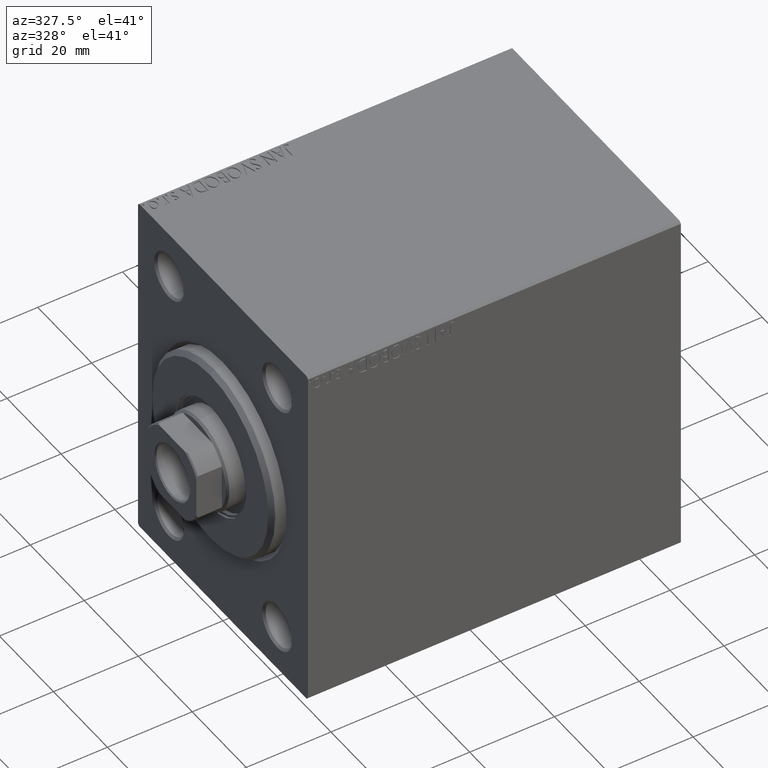
[diagram: clean part render]
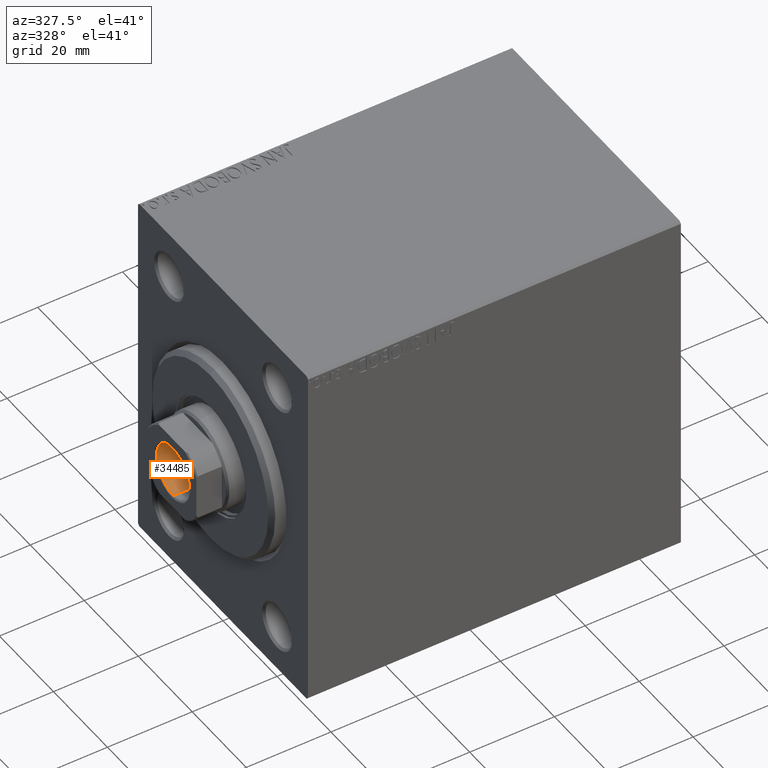
[diagram: same view with one face highlighted and labeled with its STEP entity id]
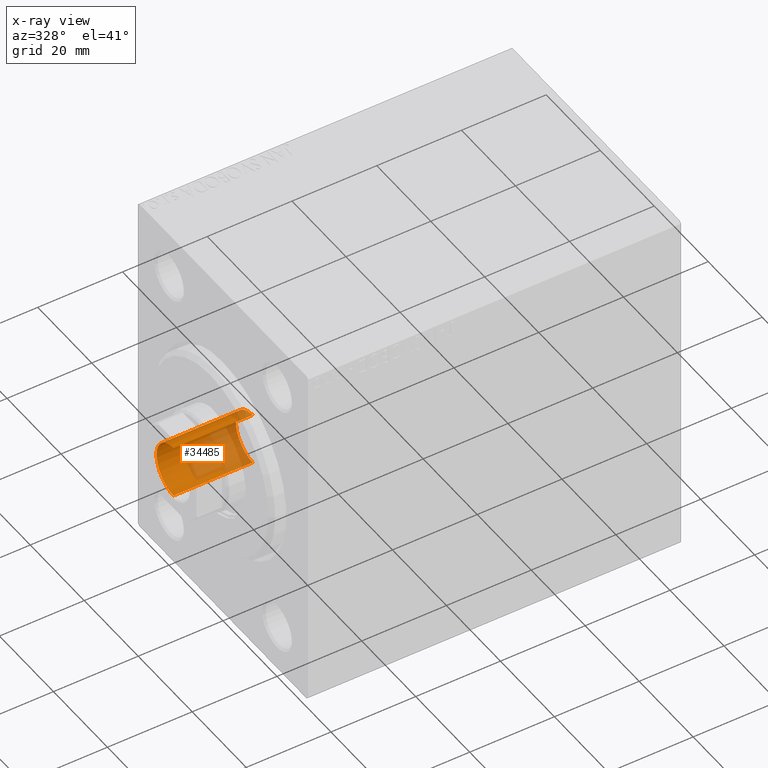
[diagram: x-ray of the same camera — body ghosted, the highlighted face saturated]
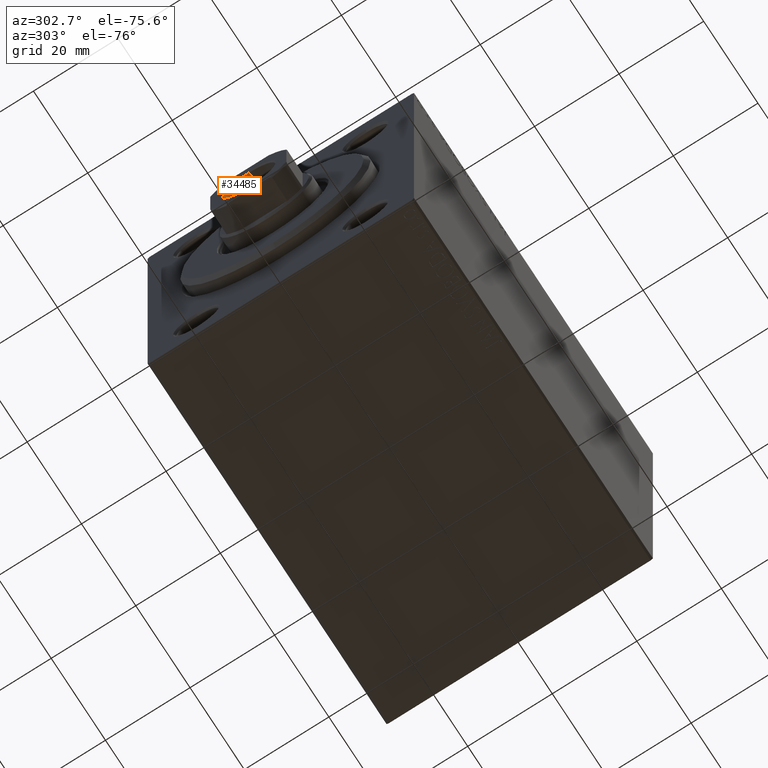
[diagram: same view with one face highlighted and labeled with its STEP entity id]
A machine part, auxiliary view. The second image highlights one B-rep face of the part: STEP entity #34485.
The next image is the same camera in x-ray: the body ghosted, the highlighted face saturated — about 49% of this face is hidden behind the body in this view.
A second angle (auxiliary view) of the same face is appended — the face is thin or edge-on in the first view.
In plain terms, the highlighted cylindrical surface (edge-blend (fillet) strip) has radius 6.25 mm, axis along (-1, 0, 0).
Its self-contained STEP definition (entity closure, byte-faithful):
#903 = CARTESIAN_POINT ( 'NONE',  ( -6.249999999999996447, 7.654042494670952676E-16, 88.00000000000000000 ) ) ;
#1090 = VERTEX_POINT ( 'NONE', #12709 ) ;
#2647 = CYLINDRICAL_SURFACE ( 'NONE', #14250, 6.249999999999996447 ) ;
#3184 = DIRECTION ( 'NONE',  ( 0.000000000000000000, 0.000000000000000000, 1.000000000000000000 ) ) ;
#4269 = DIRECTION ( 'NONE',  ( -0.000000000000000000, -0.000000000000000000, 1.000000000000000000 ) ) ;
#5599 = VERTEX_POINT ( 'NONE', #29785 ) ;
#6141 = ORIENTED_EDGE ( 'NONE', *, *, #33280, .T. ) ;
#6310 = DIRECTION ( 'NONE',  ( 1.000000000000000000, 0.000000000000000000, 0.000000000000000000 ) ) ;
#7190 = CARTESIAN_POINT ( 'NONE',  ( 0.000000000000000000, 0.000000000000000000, 87.69999999999998863 ) ) ;
#7401 = LINE ( 'NONE', #31058, #39976 ) ;
#8098 = DIRECTION ( 'NONE',  ( 1.000000000000000000, 0.000000000000000000, 0.000000000000000000 ) ) ;
#11280 = ORIENTED_EDGE ( 'NONE', *, *, #23501, .F. ) ;
#11351 = CIRCLE ( 'NONE', #34179, 6.249999999999995559 ) ;
#11369 = LINE ( 'NONE', #903, #26607 ) ;
#12057 = EDGE_CURVE ( 'NONE', #5599, #1090, #11351, .T. ) ;
#12709 = CARTESIAN_POINT ( 'NONE',  ( -6.249999999999995559, 7.654042494670950704E-16, 68.99999999999998579 ) ) ;
#14250 = AXIS2_PLACEMENT_3D ( 'NONE', #18729, #36342, #15357 ) ;
#14752 = EDGE_CURVE ( 'NONE', #5599, #18683, #7401, .T. ) ;
#15228 = CARTESIAN_POINT ( 'NONE',  ( 0.000000000000000000, 0.000000000000000000, 68.99999999999998579 ) ) ;
#15357 = DIRECTION ( 'NONE',  ( 1.000000000000000000, 0.000000000000000000, 0.000000000000000000 ) ) ;
#18683 = VERTEX_POINT ( 'NONE', #20711 ) ;
#18729 = CARTESIAN_POINT ( 'NONE',  ( 0.000000000000000000, 0.000000000000000000, 88.00000000000000000 ) ) ;
#20711 = CARTESIAN_POINT ( 'NONE',  ( 6.249999999999996447, 0.000000000000000000, 87.69999999999998863 ) ) ;
#23501 = EDGE_CURVE ( 'NONE', #1090, #31052, #11369, .T. ) ;
#24202 = CIRCLE ( 'NONE', #26332, 6.249999999999996447 ) ;
#25131 = EDGE_LOOP ( 'NONE', ( #11280, #39177, #29031, #6141 ) ) ;
#26028 = DIRECTION ( 'NONE',  ( -0.000000000000000000, -0.000000000000000000, 1.000000000000000000 ) ) ;
#26332 = AXIS2_PLACEMENT_3D ( 'NONE', #7190, #3184, #6310 ) ;
#26607 = VECTOR ( 'NONE', #26028, 1000.000000000000000 ) ;
#28746 = FACE_OUTER_BOUND ( 'NONE', #25131, .T. ) ;
#29031 = ORIENTED_EDGE ( 'NONE', *, *, #14752, .T. ) ;
#29785 = CARTESIAN_POINT ( 'NONE',  ( 6.249999999999995559, 0.000000000000000000, 68.99999999999998579 ) ) ;
#31052 = VERTEX_POINT ( 'NONE', #43039 ) ;
#31058 = CARTESIAN_POINT ( 'NONE',  ( 6.249999999999996447, 0.000000000000000000, 88.00000000000000000 ) ) ;
#31542 = DIRECTION ( 'NONE',  ( -0.000000000000000000, -0.000000000000000000, 1.000000000000000000 ) ) ;
#33280 = EDGE_CURVE ( 'NONE', #18683, #31052, #24202, .T. ) ;
#34179 = AXIS2_PLACEMENT_3D ( 'NONE', #15228, #31542, #8098 ) ;
#34485 = ADVANCED_FACE ( 'NONE', ( #28746 ), #2647, .F. ) ;
#36342 = DIRECTION ( 'NONE',  ( -0.000000000000000000, -0.000000000000000000, 1.000000000000000000 ) ) ;
#39177 = ORIENTED_EDGE ( 'NONE', *, *, #12057, .F. ) ;
#39976 = VECTOR ( 'NONE', #4269, 1000.000000000000000 ) ;
#43039 = CARTESIAN_POINT ( 'NONE',  ( -6.249999999999996447, 7.654042494670952676E-16, 87.69999999999998863 ) ) ;